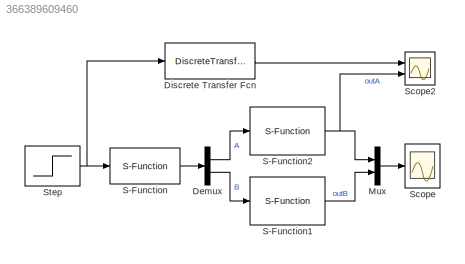
MODEL slx_366389609460
KIND model
CONFIG AbsTol = auto
CONFIG EnableMultiTasking = off
CONFIG FixedStep = 1e-4
CONFIG InitFcn = Tw=0.02;     %Ancho de Ventana.\nppv=20;      %Pulsos por vuelta.\nTs=1e-4;     %Tiempo de muestreo.\n\nnum=[0 54.16 0];\nden=[1 -1.358 0.5076];
CONFIG MaxStep = auto
CONFIG MinStep = auto
CONFIG RelTol = 1e-3
CONFIG SampleTimeConstraint = Unconstrained
CONFIG Solver = FixedStepAuto
CONFIG SolverName = FixedStepAuto
CONFIG StartTime = 0.0
CONFIG StopTime = 1
BLOCK [Demux] Demux
  DisplayOption = bar
  Outputs = 2
  Ports = [1, 2]
BLOCK [DiscreteTransferFcn] Discrete Transfer Fcn
  Denominator = den
  InputPortMap = u0
  Numerator = num
  Ports = [1, 1]
  SampleTime = Tw
BLOCK [Mux] Mux
  DisplayOption = bar
  Inputs = 2
  Ports = [2, 1]
BLOCK [S-Function] S-Function
  EnableBusSupport = off
  FunctionName = dcmotor_qenc
  Parameters = ppv
  Ports = [1, 1]
  SFcnIsStateOwnerBlock = off
  SFunctionDeploymentMode = off
BLOCK [S-Function] S-Function1
  EnableBusSupport = off
  FunctionName = dcmotor_speed
  Parameters = Ts,ppv,Tw
  Ports = [1, 1]
  SFcnIsStateOwnerBlock = off
  SFunctionDeploymentMode = off
BLOCK [S-Function] S-Function2
  EnableBusSupport = off
  FunctionName = dcmotor_speed
  Parameters = Ts,ppv,Tw
  Ports = [1, 1]
  SFcnIsStateOwnerBlock = off
  SFunctionDeploymentMode = off
BLOCK [Scope] Scope
  NumInputPorts = 1
  Ports = [1]
  ScopeSpecificationString = Simulink.scopes.TimeScopeBlockCfg('CurrentConfiguration', extmgr.ConfigurationSet(extmgr.Configuration('Core','General UI',true),extmgr.Configuration('Core','Source UI',true),extmgr.Configuration('Sources','WiredSimulink',true),extmgr.Configuration('Visuals','Time Domain',true,'SerializedDisplays',{struct('MinYLimReal','-562.5','MaxYLimReal','5062.5','YLabelReal','','MinYLimMag',' 0.00000','MaxYLi...<+1394ch>
BLOCK [Scope] Scope2
  NumInputPorts = 2
  Ports = [2]
  ScopeSpecificationString = Simulink.scopes.TimeScopeBlockCfg('CurrentConfiguration', extmgr.ConfigurationSet(extmgr.Configuration('Core','General UI',true),extmgr.Configuration('Core','Source UI',true),extmgr.Configuration('Sources','WiredSimulink',true,'DataLoggingVariableName','ScopeData1'),extmgr.Configuration('Visuals','Time Domain',true,'SerializedDisplays',{struct('MinYLimReal','-562.5','MaxYLimReal','5062.5','YLabelR...<+1452ch>
BLOCK [Step] Step
  After = 12
  SampleTime = Ts
  Time = 0.2
LINE Demux:1 -> S-Function2:1
LINE Demux:2 -> S-Function1:1
LINE Discrete Transfer Fcn:1 -> Scope2:1
LINE Mux:1 -> Scope:1
LINE S-Function1:1 -> Mux:2
NET S-Function2:1 -> Mux:1, Scope2:2
LINE S-Function:1 -> Demux:1
NET Step:1 -> Discrete Transfer Fcn:1, S-Function:1
note: NET lines group one-source signal fan-out (src -> all destinations, sorted); 1:1 wires keep LINE
